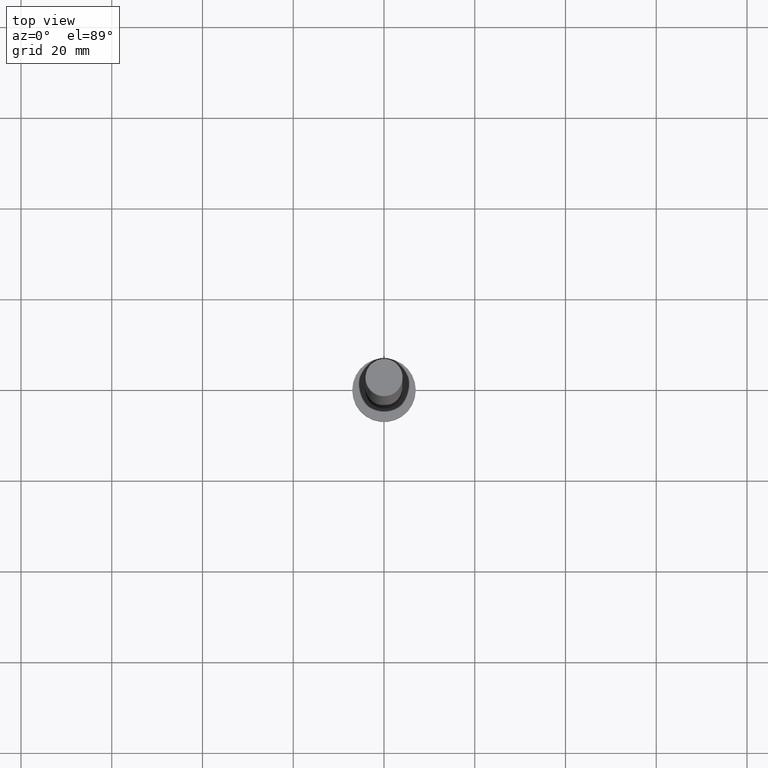
[diagram: clean part render]
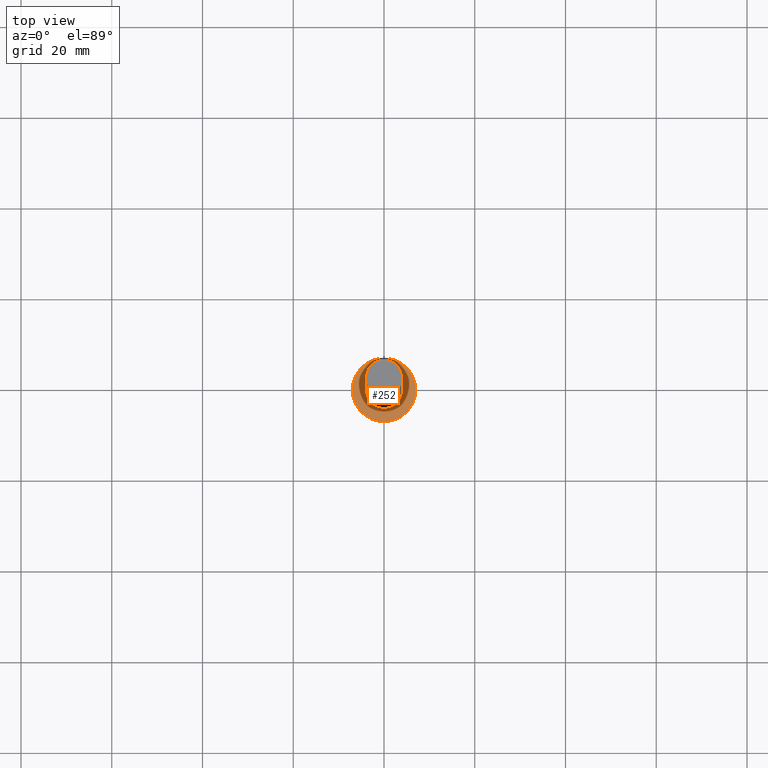
[diagram: same view with one face highlighted and labeled with its STEP entity id]
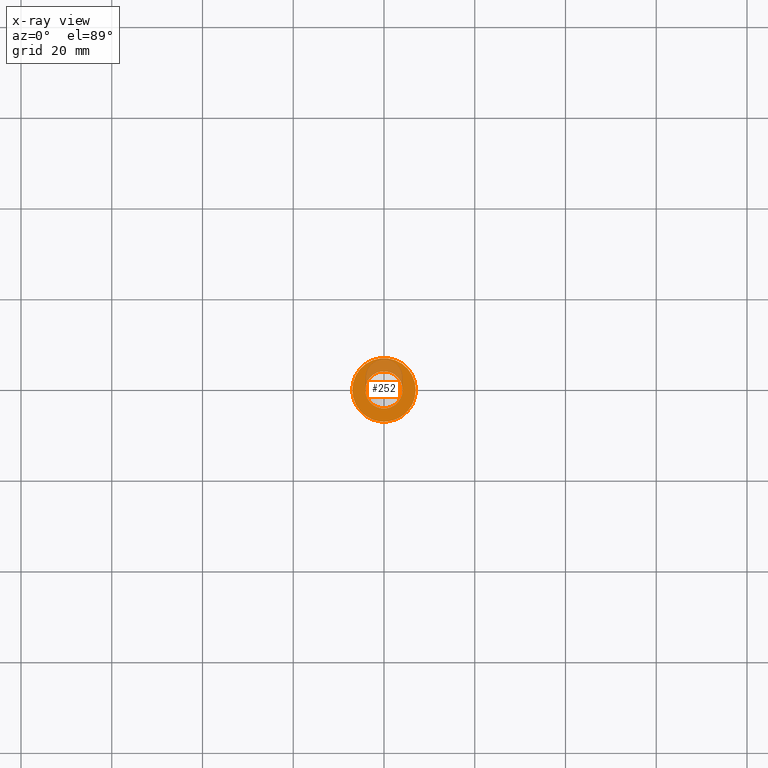
[diagram: x-ray of the same camera — body ghosted, the highlighted face saturated]
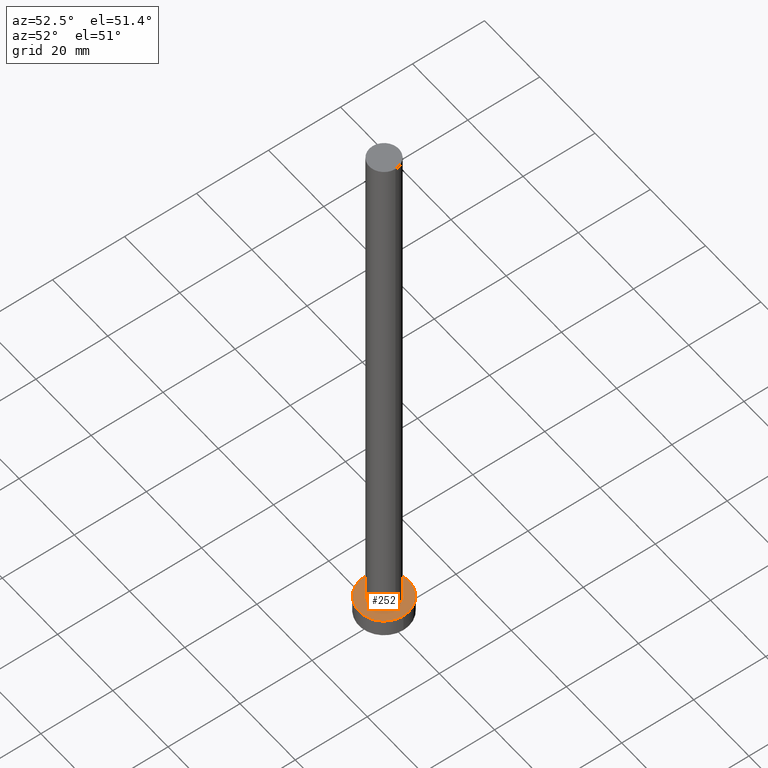
[diagram: same view with one face highlighted and labeled with its STEP entity id]
A machine part, top view. The second image highlights one B-rep face of the part: STEP entity #252.
The next image is the same camera in x-ray: the body ghosted, the highlighted face saturated — about 22% of this face is hidden behind the body in this view.
A second angle (auxiliary view) of the same face is appended — the face is thin or edge-on in the first view.
In plain terms, the highlighted planar face has unit normal (0, 0, 1).
Its self-contained STEP definition (entity closure, byte-faithful):
#4 = VERTEX_POINT ( 'NONE', #45 ) ;
#5 = AXIS2_PLACEMENT_3D ( 'NONE', #79, #104, #165 ) ;
#13 = CIRCLE ( 'NONE', #62, 7.000000000000000000 ) ;
#20 = VERTEX_POINT ( 'NONE', #194 ) ;
#25 = DIRECTION ( 'NONE',  ( 0.000000000000000000, 0.000000000000000000, 1.000000000000000000 ) ) ;
#26 = DIRECTION ( 'NONE',  ( 1.000000000000000000, 0.000000000000000000, -0.000000000000000000 ) ) ;
#29 = CARTESIAN_POINT ( 'NONE',  ( 7.000000000000000000, 8.572527594031473190E-16, 5.000000000000000000 ) ) ;
#33 = EDGE_CURVE ( 'NONE', #20, #4, #213, .T. ) ;
#37 = DIRECTION ( 'NONE',  ( 0.000000000000000000, 0.000000000000000000, 1.000000000000000000 ) ) ;
#45 = CARTESIAN_POINT ( 'NONE',  ( -4.099999999999999645, 0.000000000000000000, 5.000000000000000000 ) ) ;
#48 = CIRCLE ( 'NONE', #76, 4.099999999999999645 ) ;
#62 = AXIS2_PLACEMENT_3D ( 'NONE', #136, #25, #152 ) ;
#70 = CARTESIAN_POINT ( 'NONE',  ( -7.000000000000000000, 0.000000000000000000, 5.000000000000000000 ) ) ;
#74 = ORIENTED_EDGE ( 'NONE', *, *, #115, .F. ) ;
#76 = AXIS2_PLACEMENT_3D ( 'NONE', #214, #176, #112 ) ;
#79 = CARTESIAN_POINT ( 'NONE',  ( 0.000000000000000000, 0.000000000000000000, 5.000000000000000000 ) ) ;
#86 = VERTEX_POINT ( 'NONE', #70 ) ;
#90 = CARTESIAN_POINT ( 'NONE',  ( 0.000000000000000000, 0.000000000000000000, 5.000000000000000000 ) ) ;
#103 = EDGE_CURVE ( 'NONE', #121, #86, #13, .T. ) ;
#104 = DIRECTION ( 'NONE',  ( 0.000000000000000000, 0.000000000000000000, 1.000000000000000000 ) ) ;
#109 = FACE_OUTER_BOUND ( 'NONE', #156, .T. ) ;
#112 = DIRECTION ( 'NONE',  ( 1.000000000000000000, 0.000000000000000000, 0.000000000000000000 ) ) ;
#115 = EDGE_CURVE ( 'NONE', #4, #20, #48, .T. ) ;
#121 = VERTEX_POINT ( 'NONE', #29 ) ;
#126 = EDGE_CURVE ( 'NONE', #86, #121, #223, .T. ) ;
#133 = ORIENTED_EDGE ( 'NONE', *, *, #33, .F. ) ;
#136 = CARTESIAN_POINT ( 'NONE',  ( 0.000000000000000000, 0.000000000000000000, 5.000000000000000000 ) ) ;
#142 = AXIS2_PLACEMENT_3D ( 'NONE', #198, #37, #26 ) ;
#152 = DIRECTION ( 'NONE',  ( 1.000000000000000000, 0.000000000000000000, 0.000000000000000000 ) ) ;
#156 = EDGE_LOOP ( 'NONE', ( #160, #254 ) ) ;
#157 = PLANE ( 'NONE',  #142 ) ;
#160 = ORIENTED_EDGE ( 'NONE', *, *, #126, .T. ) ;
#165 = DIRECTION ( 'NONE',  ( 1.000000000000000000, 0.000000000000000000, 0.000000000000000000 ) ) ;
#176 = DIRECTION ( 'NONE',  ( 0.000000000000000000, 0.000000000000000000, 1.000000000000000000 ) ) ;
#183 = DIRECTION ( 'NONE',  ( 0.000000000000000000, 0.000000000000000000, 1.000000000000000000 ) ) ;
#194 = CARTESIAN_POINT ( 'NONE',  ( 4.099999999999999645, 5.021051876504147385E-16, 5.000000000000000000 ) ) ;
#198 = CARTESIAN_POINT ( 'NONE',  ( 0.000000000000000000, 0.000000000000000000, 5.000000000000000000 ) ) ;
#213 = CIRCLE ( 'NONE', #227, 4.099999999999999645 ) ;
#214 = CARTESIAN_POINT ( 'NONE',  ( 0.000000000000000000, 0.000000000000000000, 5.000000000000000000 ) ) ;
#223 = CIRCLE ( 'NONE', #5, 7.000000000000000000 ) ;
#227 = AXIS2_PLACEMENT_3D ( 'NONE', #90, #183, #242 ) ;
#228 = FACE_BOUND ( 'NONE', #236, .T. ) ;
#236 = EDGE_LOOP ( 'NONE', ( #74, #133 ) ) ;
#242 = DIRECTION ( 'NONE',  ( 1.000000000000000000, 0.000000000000000000, 0.000000000000000000 ) ) ;
#252 = ADVANCED_FACE ( 'NONE', ( #228, #109 ), #157, .T. ) ;
#254 = ORIENTED_EDGE ( 'NONE', *, *, #103, .T. ) ;